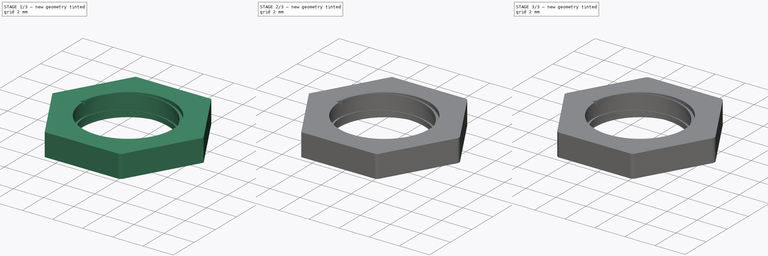
[diagram: build sequence overview — one tinted view per stage of 3, left to right]
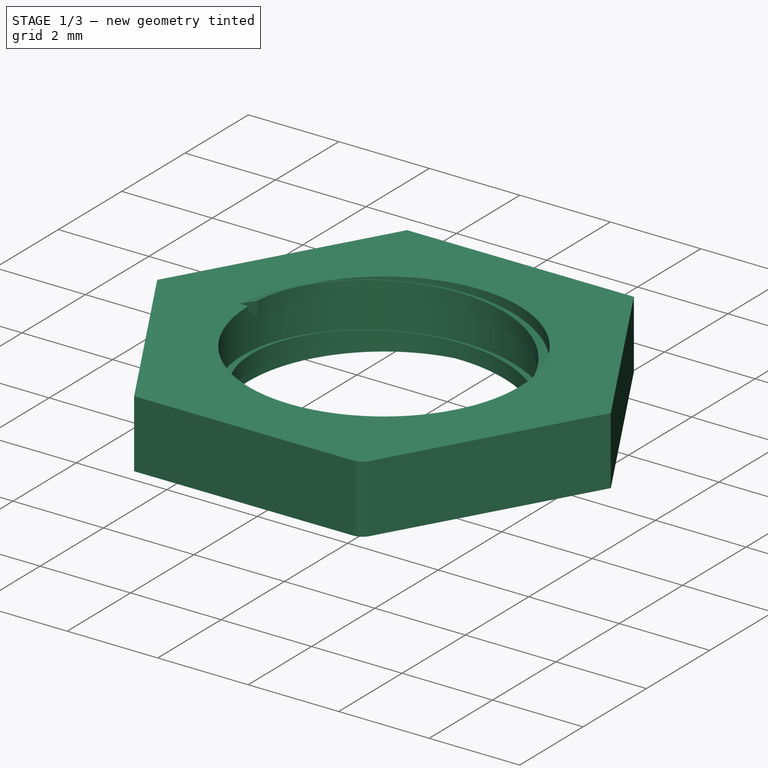
[diagram: stage 1 of 3 — iso view after this stage's code; geometry added in this stage tinted green]
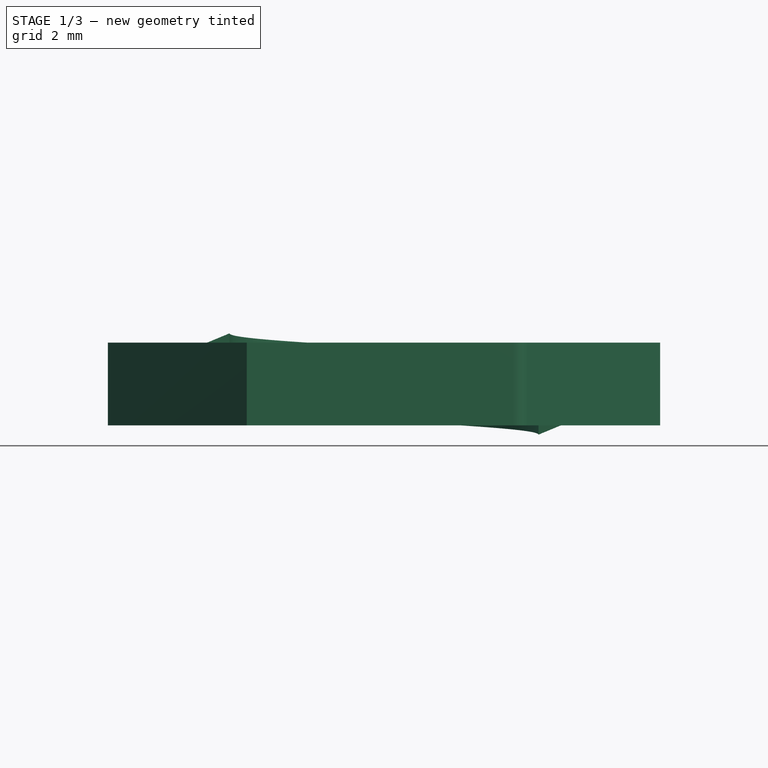
[diagram: stage 1 of 3 — front view after this stage's code; geometry added in this stage tinted green]
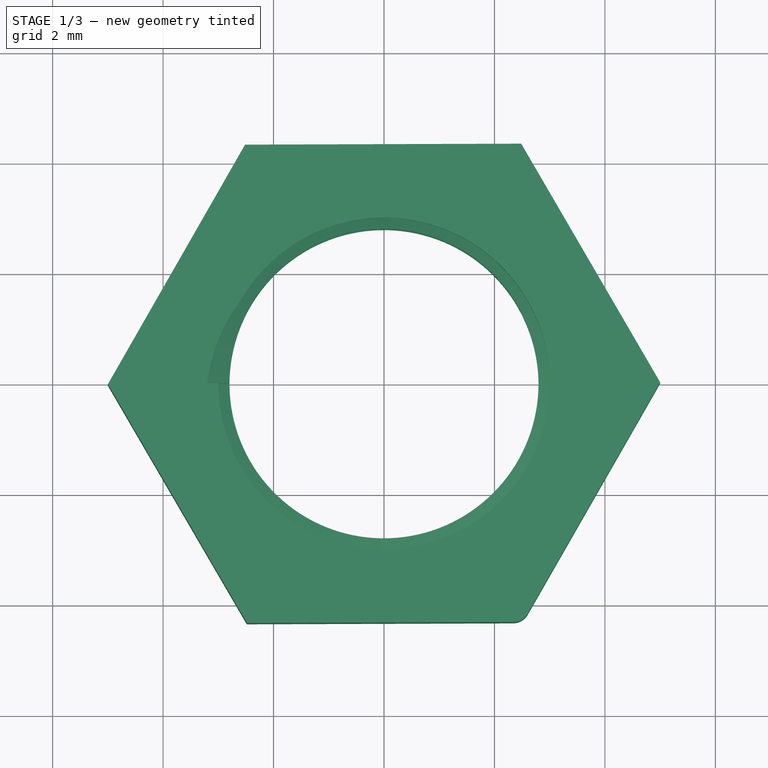
[diagram: stage 1 of 3 — top view after this stage's code; geometry added in this stage tinted green]
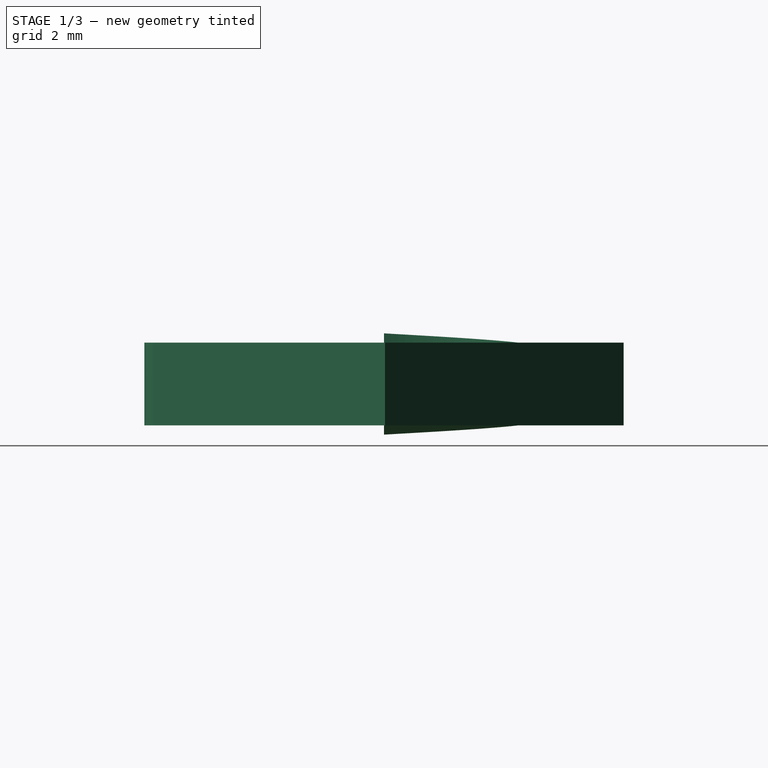
[diagram: stage 1 of 3 — right view after this stage's code; geometry added in this stage tinted green]
FCSTD DOCUMENT  (FreeCAD 0.19R24276 (Git))
Label: tuerca potenciometro
License: All rights reserved
LicenseURL: http://en.wikipedia.org/wiki/All_rights_reserved
objects: PartDesign::Fillet×6, Sketcher::SketchObject×2, PartDesign::Body×2, PartDesign::Pad×1, Part::Helix×1, Part::Sweep×1
note: 20 computed .brp shape members not serialized (recipe doc carries the construction recipe); baked Part::Feature solids carry a one-line shape summary decoded from their .brp

FEATURE [Sketcher::SketchObject] Sketch
  FullyConstrained = false
  MapMode = 5
  Support = -> [XY_Plane]
  sketch-geometry (9):
    g0: Circle CenterX=0 CenterY=0 CenterZ=0 NormalX=0 NormalY=0 NormalZ=1 AngleXU=0 Radius=3
    g1: LineSegment StartX=2.51563 StartY=-4.32106 StartZ=0 EndX=4.99997 EndY=0.0180689 EndZ=0
    g2: LineSegment StartX=4.99997 StartY=0.0180689 StartZ=0 EndX=2.48434 EndY=4.33913 EndZ=0
    g3: LineSegment StartX=2.48434 StartY=4.33913 StartZ=0 EndX=-2.51563 EndY=4.32106 EndZ=0
    g4: LineSegment StartX=-2.51563 StartY=4.32106 StartZ=0 EndX=-4.99997 EndY=-0.0180689 EndZ=0
    g5: LineSegment StartX=-4.99997 StartY=-0.0180689 StartZ=0 EndX=-2.48434 EndY=-4.33913 EndZ=0
    g6: LineSegment StartX=-2.48434 StartY=-4.33913 StartZ=0 EndX=2.51563 EndY=-4.32106 EndZ=0
    g7: Circle CenterX=0 CenterY=0 CenterZ=0 NormalX=0 NormalY=0 NormalZ=1 AngleXU=0 Radius=5
    g8: Circle CenterX=0 CenterY=0 CenterZ=0 NormalX=0 NormalY=0 NormalZ=1 AngleXU=0 Radius=5
  constraints (19):
    c: Coincident(g0,g-1)
    c: Diameter(g0) = 6
    c: Coincident(g1,g2)
    c: Coincident(g2,g3)
    c: Coincident(g3,g4)
    c: Coincident(g4,g5)
    c: Coincident(g5,g6)
    c: Coincident(g6,g1)
    c: Equal(g1, g2-g6) x5
    c: PointOnObject(g1,g7)
    c: PointOnObject(g2,g7)
    c: PointOnObject(g3,g7)
    c: PointOnObject(g4,g7)
    c: PointOnObject(g5,g7)
    c: PointOnObject(g6,g7)
    c: Coincident(g7,g0)
    c: Coincident(g8,g0)
    c: Diameter(g8) = 10
    c: PointOnObject(g1,g8)
FEATURE [PartDesign::Pad] Pad
  Direction = (1,1,1)
  Length = 1.5
  Length2 = 100
  Profile = -> Sketch
  Type = 0
FEATURE [PartDesign::Fillet] Fillet
  Base = -> Pad [Edge1]
  BaseFeature = -> Pad
  Radius = 0.3
  SupportTransform = false
FEATURE [PartDesign::Body] Body
  Group = -> [Sketch,Pad,Fillet,Fillet001,Fillet002,Fillet003,Fillet004,Fillet005]
  Origin = -> Origin
  Tip = -> Fillet005
FEATURE [Part::Helix] Helix  label="Hélice"
  Angle = 0
  AttacherType = Attacher::AttachEngine3D
  Height = 1.5
  LocalCoord = 0
  Pitch = 1
  Radius = 3
  Style = 1
FEATURE [Sketcher::SketchObject] Sketch001
  FullyConstrained = false
  MapMode = 5
  Placement = pos=(0,0,0) rot=(1,0,0;1.5708rad)
  Support = -> [XZ_Plane001]
  sketch-geometry (8):
    g0: LineSegment StartX=0 StartY=0 StartZ=0 EndX=-3 EndY=0 EndZ=0
    g1: LineSegment StartX=-3 StartY=0 StartZ=0 EndX=-3 EndY=1.5 EndZ=0
    g2: LineSegment StartX=-3 StartY=1.5 StartZ=0 EndX=-2.41674 EndY=1.5 EndZ=0
    g3: LineSegment StartX=-3 StartY=1.5 StartZ=0 EndX=-3.31208 EndY=1.5 EndZ=0
    g4: LineSegment StartX=-3.2 StartY=1.5 StartZ=0 EndX=-2.79759 EndY=1.66668 EndZ=0
    g5: LineSegment StartX=-2.79759 StartY=1.66668 StartZ=0 EndX=-2.79759 EndY=1.33332 EndZ=0
    g6: LineSegment StartX=-2.79759 StartY=1.33332 StartZ=0 EndX=-3.2 EndY=1.5 EndZ=0
    g7: GeomPoint X=-2.79759 Y=1.5 Z=0
  constraints (19):
    c: Coincident(g0,g-1)
    c: PointOnObject(g0,g-1)
    c: Coincident(g1,g0)
    c: Vertical(g1)
    c: DistanceX(g0,g0) = 3
    c: DistanceY(g1,g1) = 1.5
    c: Coincident(g2,g1)
    c: Coincident(g3,g1)
    c: Horizontal(g2)
    c: Horizontal(g3)
    c: PointOnObject(g4,g3)
    c: Coincident(g5,g4)
    c: Coincident(g6,g5)
    c: Coincident(g6,g4)
    c: Vertical(g5)
    c: Angle(g6,g4) = 0.785398
    c: PointOnObject(g7,g2)
    c: Symmetric(g4,g5,g7)
    c: DistanceX(g4,g1) = 0.2
FEATURE [PartDesign::Body] Body001
  Group = -> [Sketch001]
  Origin = -> Origin001
FEATURE [Part::Sweep] Sweep
  Frenet = true
  Sections = -> [Sketch001]
  Solid = true
  Spine = -> Helix [Edge2,Edge1]
  Transition = 1
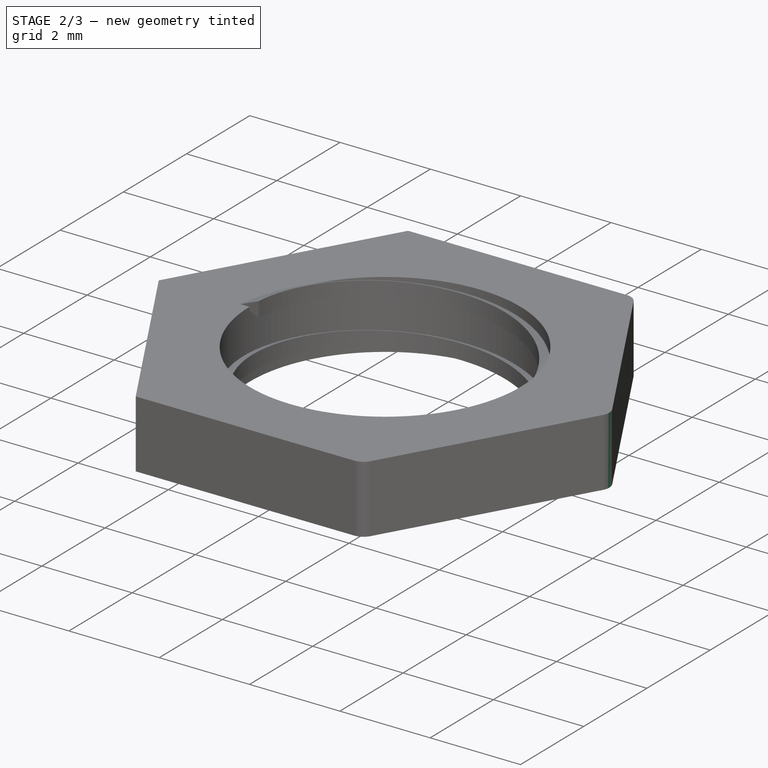
[diagram: stage 2 of 3 — iso view after this stage's code; geometry added in this stage tinted green]
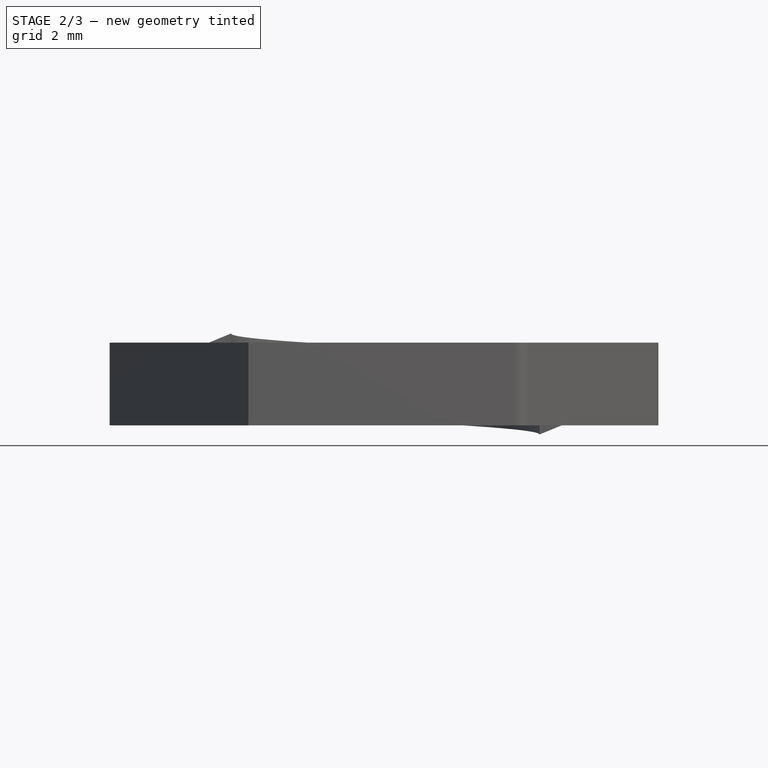
[diagram: stage 2 of 3 — front view after this stage's code; geometry added in this stage tinted green]
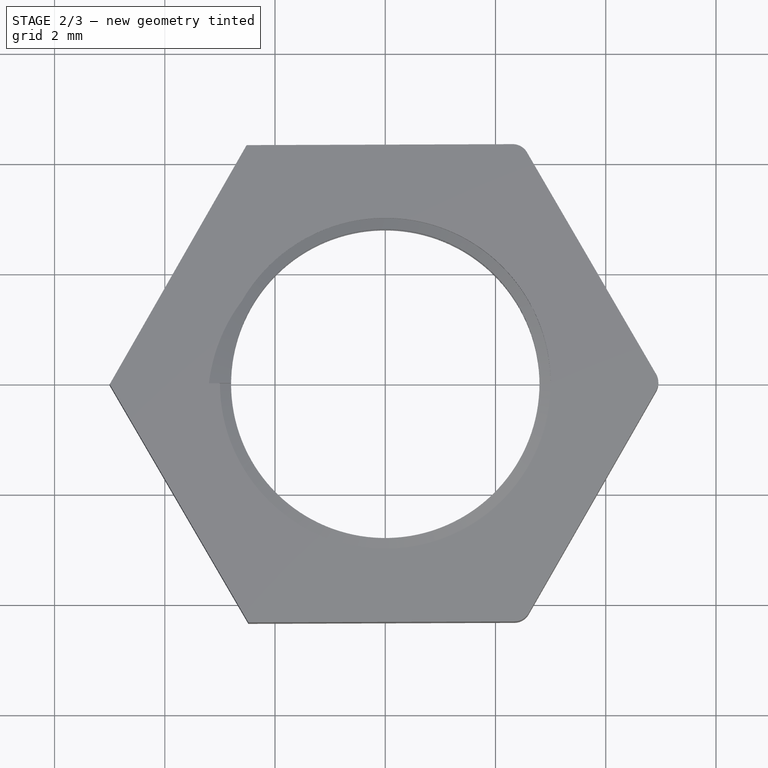
[diagram: stage 2 of 3 — top view after this stage's code; geometry added in this stage tinted green]
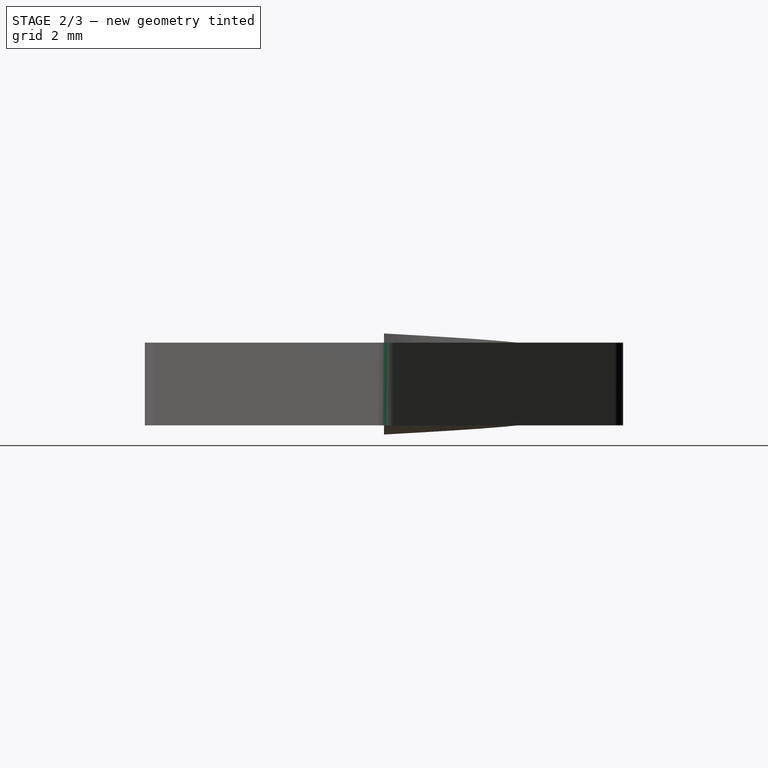
[diagram: stage 2 of 3 — right view after this stage's code; geometry added in this stage tinted green]
FEATURE [PartDesign::Fillet] Fillet001
  Base = -> Fillet [Edge3]
  BaseFeature = -> Fillet
  Radius = 0.3
  SupportTransform = false
FEATURE [PartDesign::Fillet] Fillet002
  Base = -> Fillet001 [Edge23]
  BaseFeature = -> Fillet001
  Radius = 0.3
  SupportTransform = false
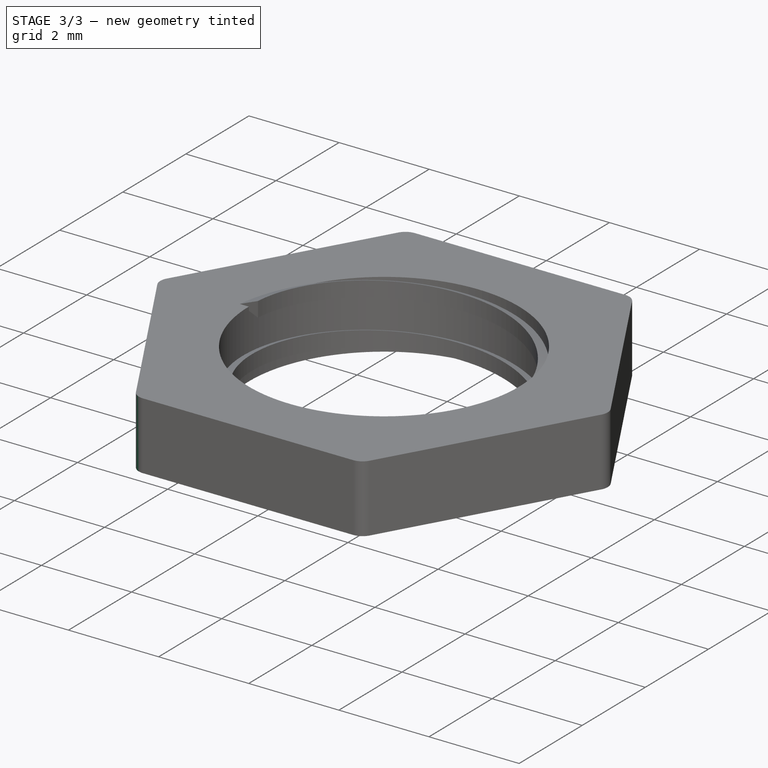
[diagram: stage 3 of 3 — iso view after this stage's code; geometry added in this stage tinted green]
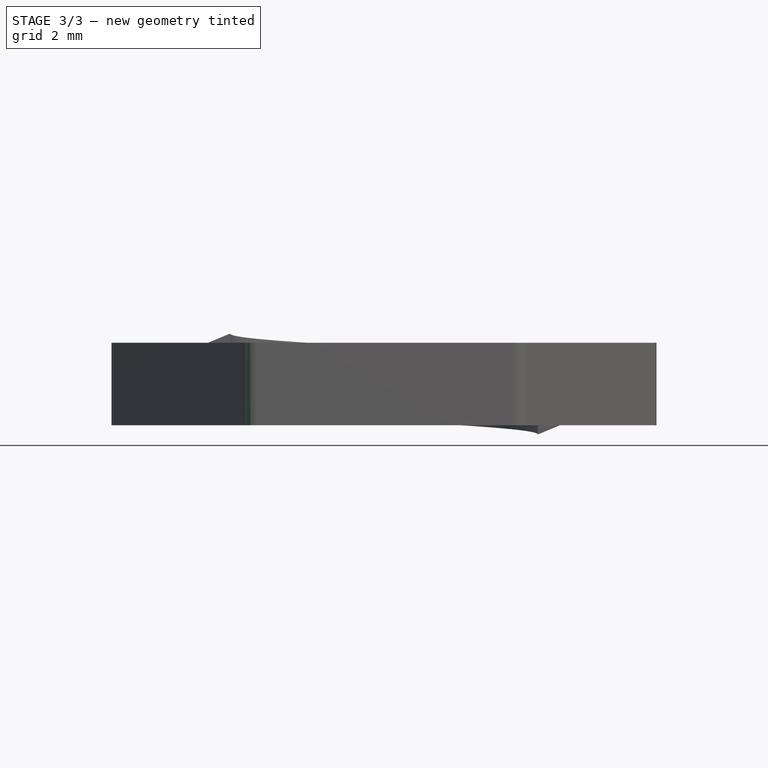
[diagram: stage 3 of 3 — front view after this stage's code; geometry added in this stage tinted green]
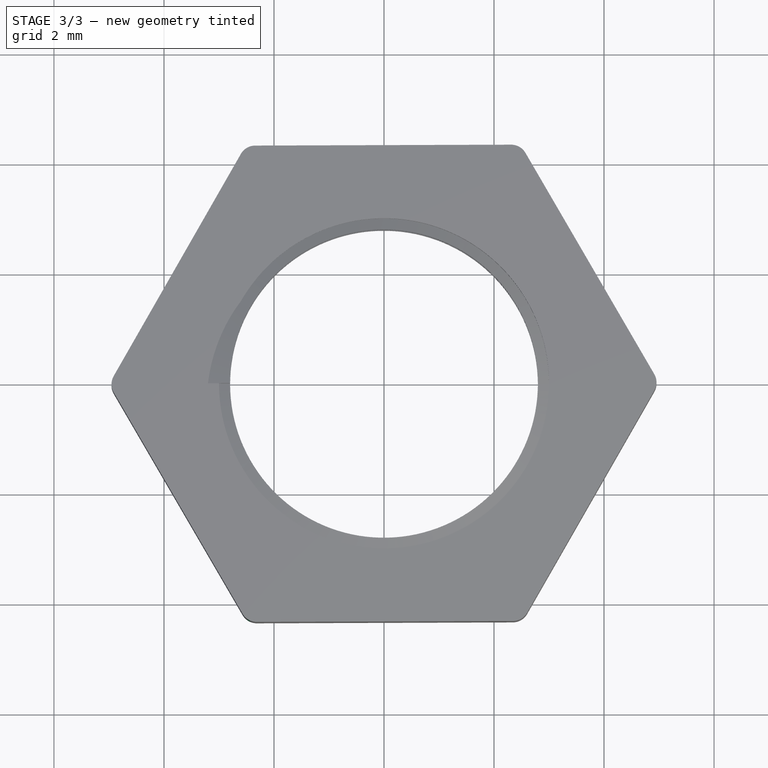
[diagram: stage 3 of 3 — top view after this stage's code; geometry added in this stage tinted green]
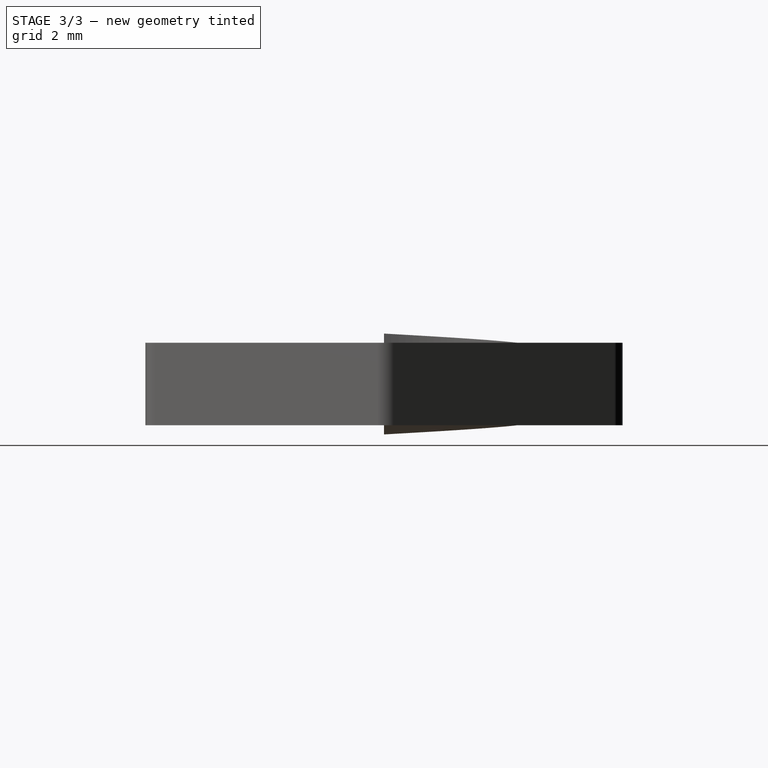
[diagram: stage 3 of 3 — right view after this stage's code; geometry added in this stage tinted green]
FEATURE [PartDesign::Fillet] Fillet003
  Base = -> Fillet002 [Edge18]
  BaseFeature = -> Fillet002
  Radius = 0.3
  SupportTransform = false
FEATURE [PartDesign::Fillet] Fillet004
  Base = -> Fillet003 [Edge23]
  BaseFeature = -> Fillet003
  Radius = 0.3
  SupportTransform = false
FEATURE [PartDesign::Fillet] Fillet005
  Base = -> Fillet004 [Edge14]
  BaseFeature = -> Fillet004
  Radius = 0.3
  SupportTransform = false
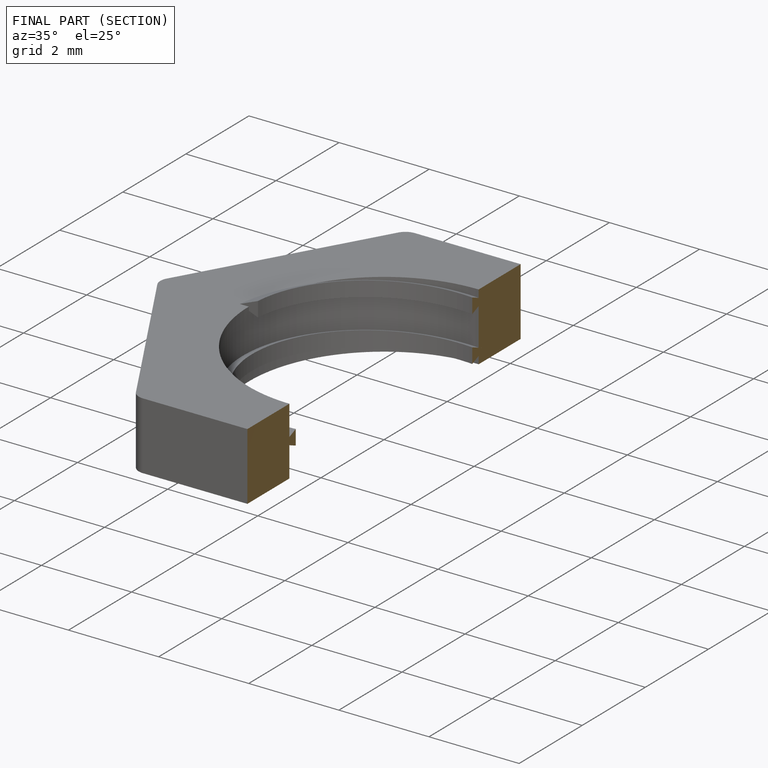
[diagram: finished part — half-section view (interior)]
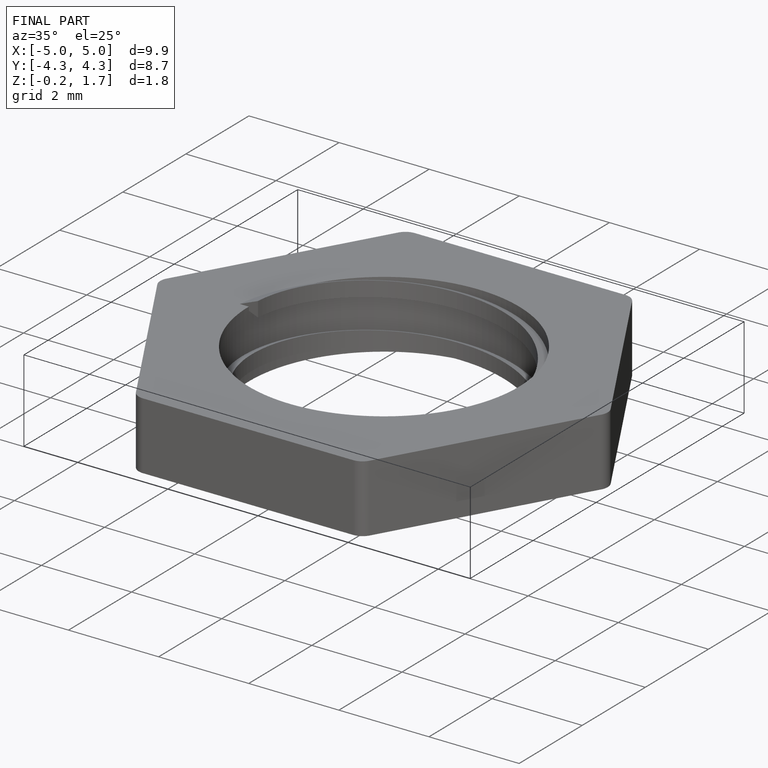
[diagram: finished part — iso view with bounding-box wireframe]
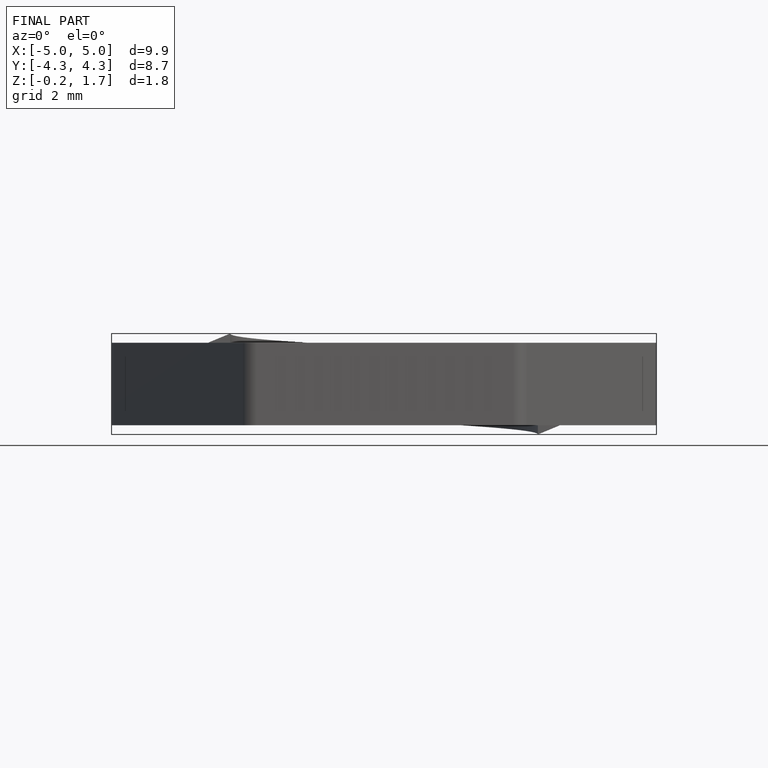
[diagram: finished part — front view with bounding-box wireframe]
